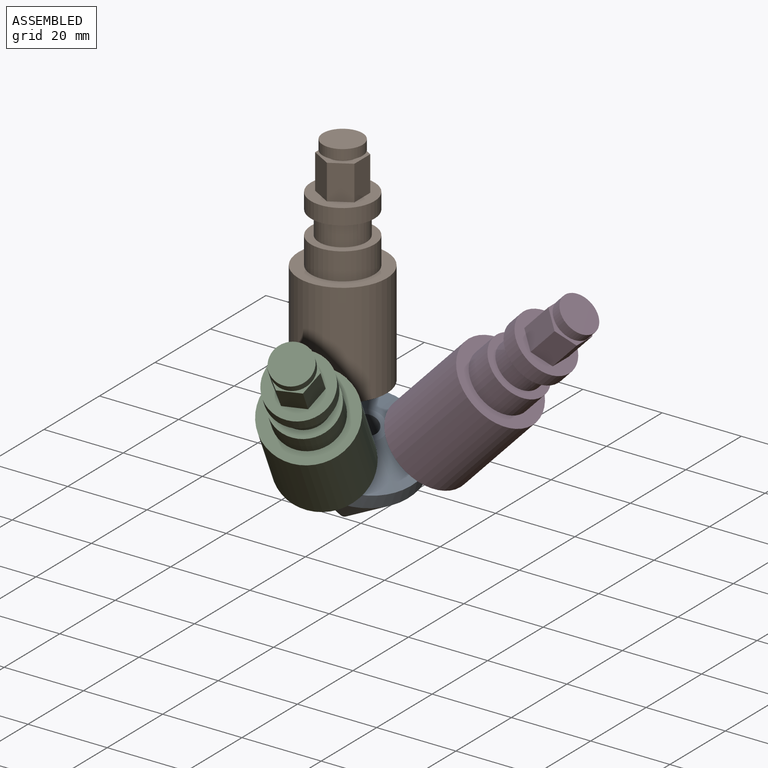
[diagram: assembled view]
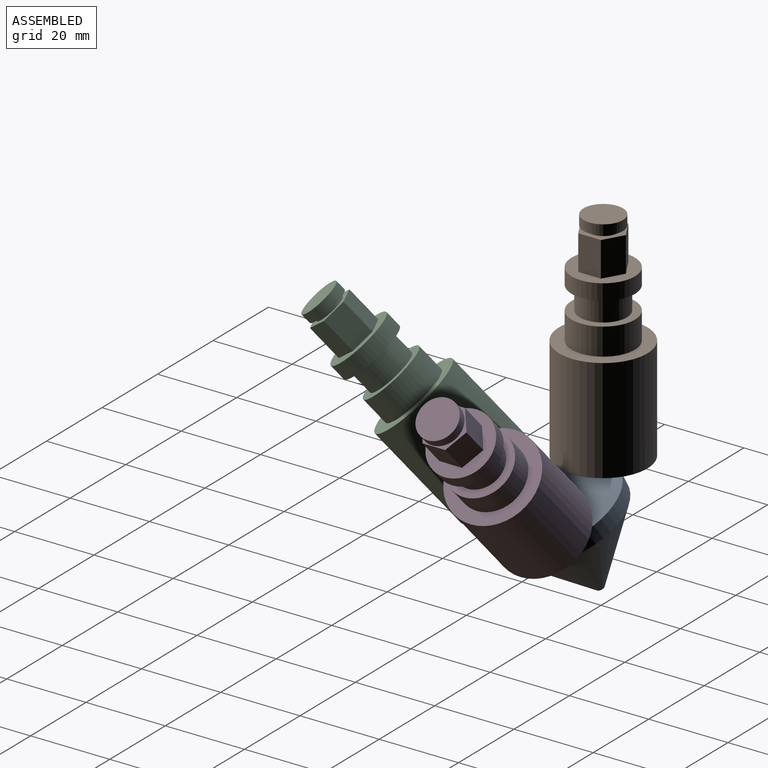
[diagram: assembled view, second angle]
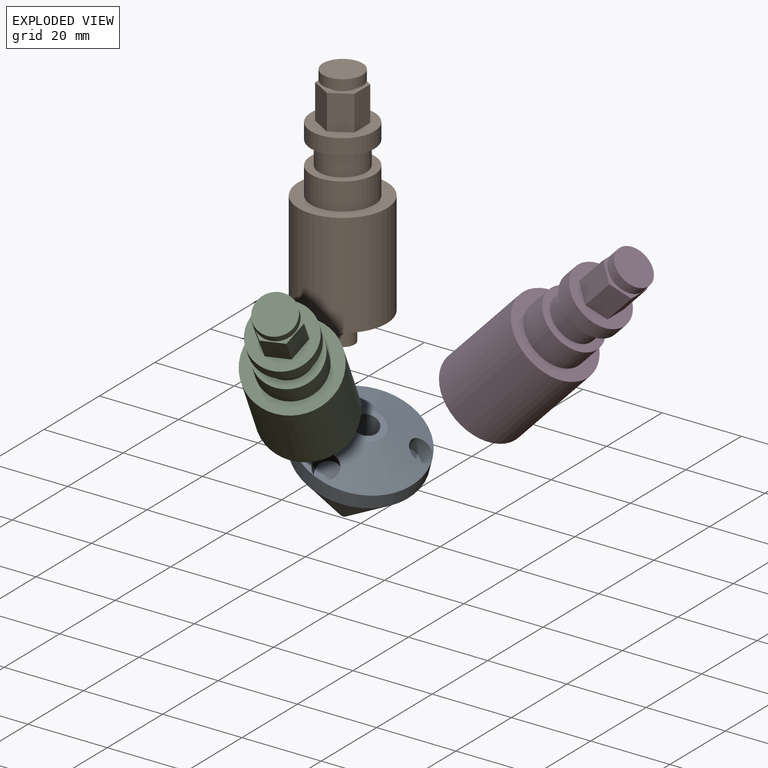
[diagram: exploded view]
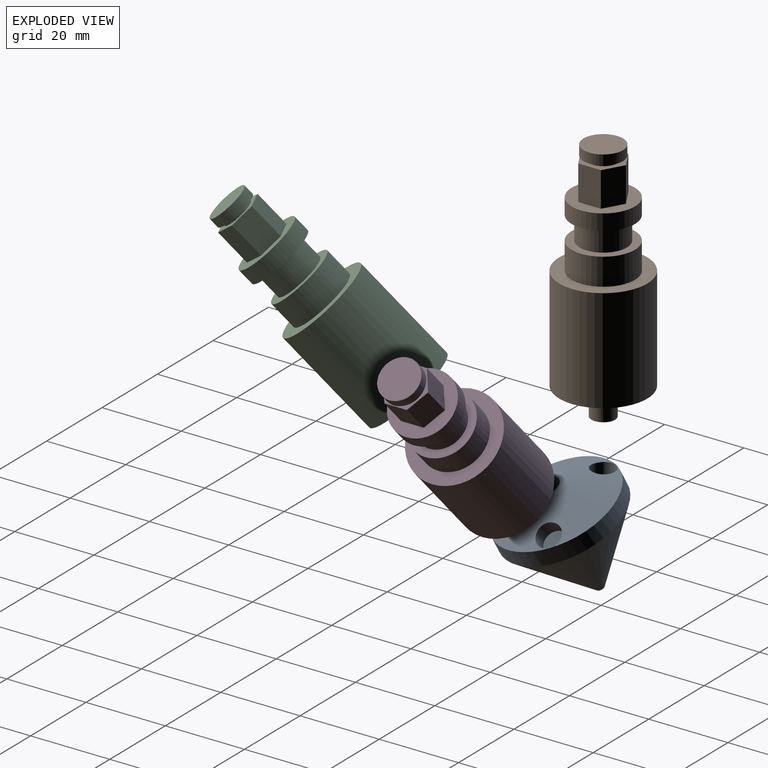
[diagram: exploded view, second angle]
ASSEMBLY  parts=4 mates=3
PART A: 13 faces, bbox 30x30x28 mm
  f0: plane 9x9mm, normal (0,0,1), area 35.3mm2, adj f4,f11
  f1: plane 2x2mm, normal (0,0,-1), area 3.1mm2, adj f2
  f2: cone r=15mm half-angle=36.4deg, axis (0,0,1), area 1186.3mm2, adj f1,f3
  f3: cylinder r=15mm len=30mm, axis (0,0,1), area 377mm2, adj f2,f4
  f4: cone r=4.5mm half-angle=64.5deg, axis (0,0,-1), area 627.4mm2, adj f0,f3,f5,f7,f9
  f5: cylinder r=3mm len=7.22mm, axis (0,-0.43,0.9), area 77.7mm2, adj f4,f6
  f6: plane 6x5.42mm, normal (0,-0.43,0.9), area 28.3mm2, adj f5
  f7: cylinder r=3mm len=7.13mm, axis (-0.37,0.21,0.9), area 77.7mm2, adj f4,f8
  f8: plane 5.86x5.57mm, normal (-0.37,0.21,0.9), area 28.3mm2, adj f7
  f9: cylinder r=3mm len=7.13mm, axis (0.37,0.21,0.9), area 77.7mm2, adj f4,f10
  f10: plane 5.86x5.57mm, normal (0.37,0.21,0.9), area 28.3mm2, adj f9
  f11: cylinder r=3mm len=15mm, axis (0,0,1), area 282.7mm2, adj f0,f12
  f12: plane 6x6mm, normal (0,0,1), area 28.3mm2, adj f11
PART B: 22 faces, bbox 22.3x22.3x62 mm
  f0: plane 16x16mm, normal (0,0,1), area 116.2mm2, adj f9,f11,f12,f13,f14,f15,f16
  f1: cylinder r=3mm len=7mm, axis (0,0,-1), area 131.9mm2, adj f2,f5
  f2: plane 6x6mm, normal (0,0,-1), area 28.3mm2, adj f1
  f3: cylinder r=11.15mm len=26.25mm, axis (0,0,-1), area 1839mm2, adj f4,f5
  f4: plane 22.3x22.3mm, normal (0,0,1), area 189.5mm2, adj f3,f6
  f5: plane 22.3x22.3mm, normal (0,0,-1), area 362.3mm2, adj f1,f3
  f6: cylinder r=8mm len=16mm, axis (0,0,-1), area 344.3mm2, adj f4,f7
  f7: plane 16x16mm, normal (0,0,1), area 88mm2, adj f6,f8
  f8: cylinder r=6mm len=12mm, axis (0,0,-1), area 221.7mm2, adj f7,f10
  f9: cylinder r=8mm len=16mm, axis (0,0,-1), area 201.1mm2, adj f0,f10
  f10: plane 16x16mm, normal (0,0,-1), area 88mm2, adj f8,f9
  f11: plane 8.8x4.95mm, normal (-0.5,-0.87,0), area 50.3mm2, adj f0,f12,f16,f17
  f12: plane 8.8x4.95mm, normal (0.5,-0.87,0), area 50.3mm2, adj f0,f11,f13,f17
  f13: plane 8.8x5.72mm, normal (1,0,0), area 50.3mm2, adj f0,f12,f14,f17
  f14: plane 8.8x4.95mm, normal (0.5,0.87,0), area 50.3mm2, adj f0,f13,f15,f17
  f15: plane 8.8x4.95mm, normal (-0.5,0.87,0), area 50.3mm2, adj f0,f14,f16,f17
  f16: plane 8.8x5.72mm, normal (-1,0,0), area 50.3mm2, adj f0,f11,f15,f17
  f17: plane 11.43x9.9mm, normal (0,0,1), area 40.7mm2, adj f11,f12,f13,f14,f15,f16,f18
  f18: cylinder r=3.75mm len=7.5mm, axis (0,0,-1), area 17.7mm2, adj f17,f21
  f19: cylinder r=5mm len=10mm, axis (0,0,-1), area 78.5mm2, adj f20,f21
  f20: plane 10x10mm, normal (0,0,1), area 78.5mm2, adj f19
  f21: plane 10x10mm, normal (0,0,-1), area 34.4mm2, adj f18,f19
PART C: same geometry as B
PART D: same geometry as B
PLACE A rot(axis=(0.52,0.85,-0.1),25.6deg) t=(41.93,14.85,-45.04)mm
PLACE B t=(36.67,18.21,-33.77)mm
PLACE C rot(axis=(0.86,0.47,-0.17),44.4deg) t=(43.74,2.91,-40.53)mm
PLACE D rot(axis=(0,1,0),43.7deg) t=(53.53,18.21,-40.53)mm
MATE fastened A.f5 <-> C.f1  axis (0.29,-0.63,0.72) through (43.74,2.91,-40.53)mm
MATE fastened A.f9 <-> D.f1  axis (0.69,0,0.72) through (53.53,18.21,-40.53)mm
MATE fastened A.f7 <-> B.f1  axis (0,0,1) through (36.67,18.21,-33.77)mm
